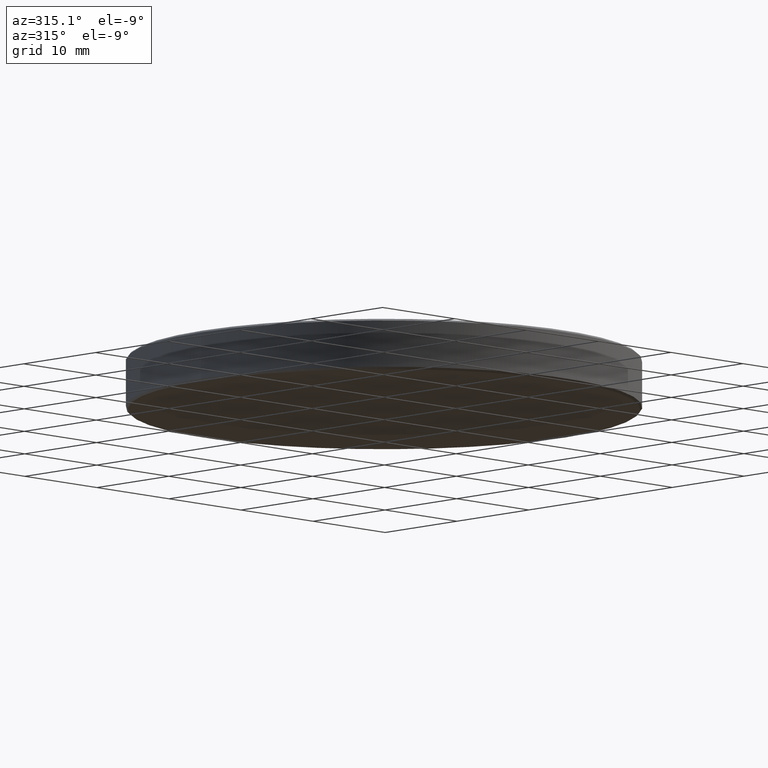
[diagram: clean part render]
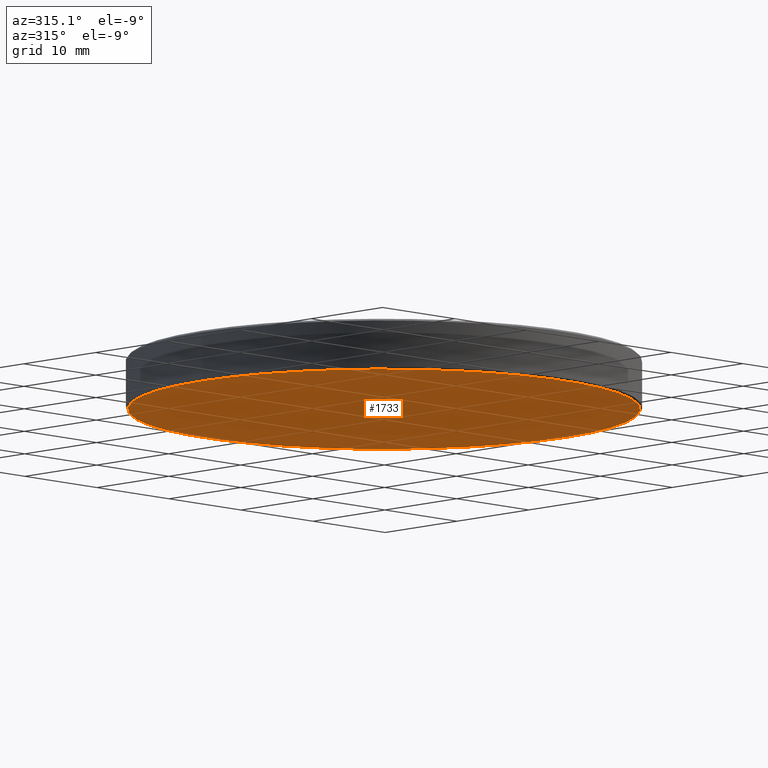
[diagram: same view with one face highlighted and labeled with its STEP entity id]
A machine part, auxiliary view. The second image highlights one B-rep face of the part: STEP entity #1733.
In plain terms, the highlighted planar face has unit normal (0, 0, 1).
Its self-contained STEP definition (entity closure, byte-faithful):
#62 = AXIS2_PLACEMENT_3D ( 'NONE', #1976, #641, #2202 ) ;
#113 = DIRECTION ( 'NONE',  ( 0.0000000000000000000, 0.0000000000000000000, 1.000000000000000000 ) ) ;
#362 = EDGE_LOOP ( 'NONE', ( #2564, #1008 ) ) ;
#520 = AXIS2_PLACEMENT_3D ( 'NONE', #1199, #2764, #1422 ) ;
#553 = CIRCLE ( 'NONE', #520, 25.20000000000000600 ) ;
#641 = DIRECTION ( 'NONE',  ( -0.0000000000000000000, -0.0000000000000000000, -1.000000000000000000 ) ) ;
#788 = CARTESIAN_POINT ( 'NONE',  ( 0.0000000000000000000, 0.0000000000000000000, -2.500000000000000000 ) ) ;
#1008 = ORIENTED_EDGE ( 'NONE', *, *, #1393, .T. ) ;
#1106 = VERTEX_POINT ( 'NONE', #1420 ) ;
#1199 = CARTESIAN_POINT ( 'NONE',  ( 0.0000000000000000000, 0.0000000000000000000, -2.500000000000000000 ) ) ;
#1211 = CIRCLE ( 'NONE', #62, 25.20000000000000600 ) ;
#1393 = EDGE_CURVE ( 'NONE', #2141, #1106, #1211, .T. ) ;
#1420 = CARTESIAN_POINT ( 'NONE',  ( 25.20000000000000600, 0.0000000000000000000, -2.500000000000000000 ) ) ;
#1422 = DIRECTION ( 'NONE',  ( 1.000000000000000000, 0.0000000000000000000, 0.0000000000000000000 ) ) ;
#1569 = AXIS2_PLACEMENT_3D ( 'NONE', #788, #113, #1686 ) ;
#1644 = EDGE_CURVE ( 'NONE', #1106, #2141, #553, .T. ) ;
#1686 = DIRECTION ( 'NONE',  ( 1.000000000000000000, 0.0000000000000000000, -0.0000000000000000000 ) ) ;
#1733 = ADVANCED_FACE ( 'NONE', ( #2792 ), #2802, .F. ) ;
#1976 = CARTESIAN_POINT ( 'NONE',  ( 0.0000000000000000000, 0.0000000000000000000, -2.500000000000000000 ) ) ;
#2141 = VERTEX_POINT ( 'NONE', #2771 ) ;
#2202 = DIRECTION ( 'NONE',  ( 1.000000000000000000, 0.0000000000000000000, 0.0000000000000000000 ) ) ;
#2564 = ORIENTED_EDGE ( 'NONE', *, *, #1644, .T. ) ;
#2764 = DIRECTION ( 'NONE',  ( -0.0000000000000000000, -0.0000000000000000000, -1.000000000000000000 ) ) ;
#2771 = CARTESIAN_POINT ( 'NONE',  ( -25.20000000000000600, 3.098356401842804300E-015, -2.500000000000000000 ) ) ;
#2792 = FACE_OUTER_BOUND ( 'NONE', #362, .T. ) ;
#2802 = PLANE ( 'NONE',  #1569 ) ;